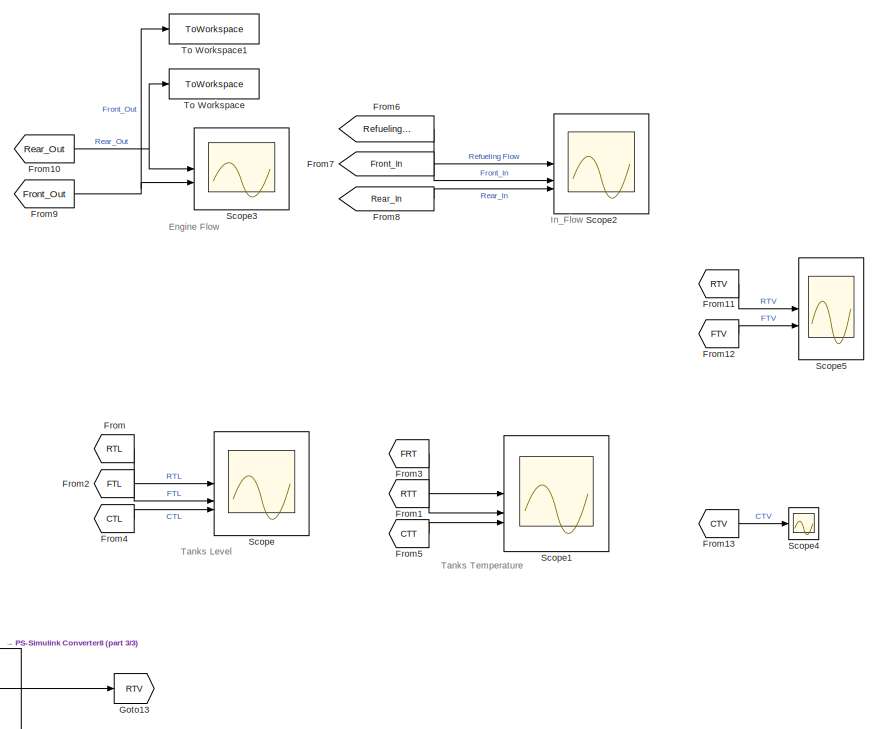
[diagram: root canvas - part 1/3, top right region]
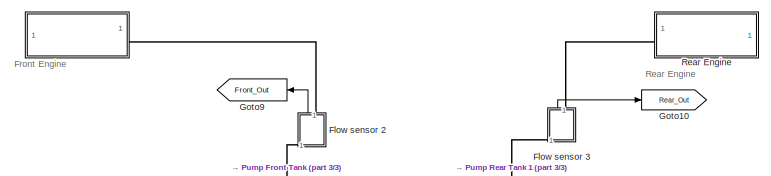
[diagram: root canvas - part 2/3, top center region]
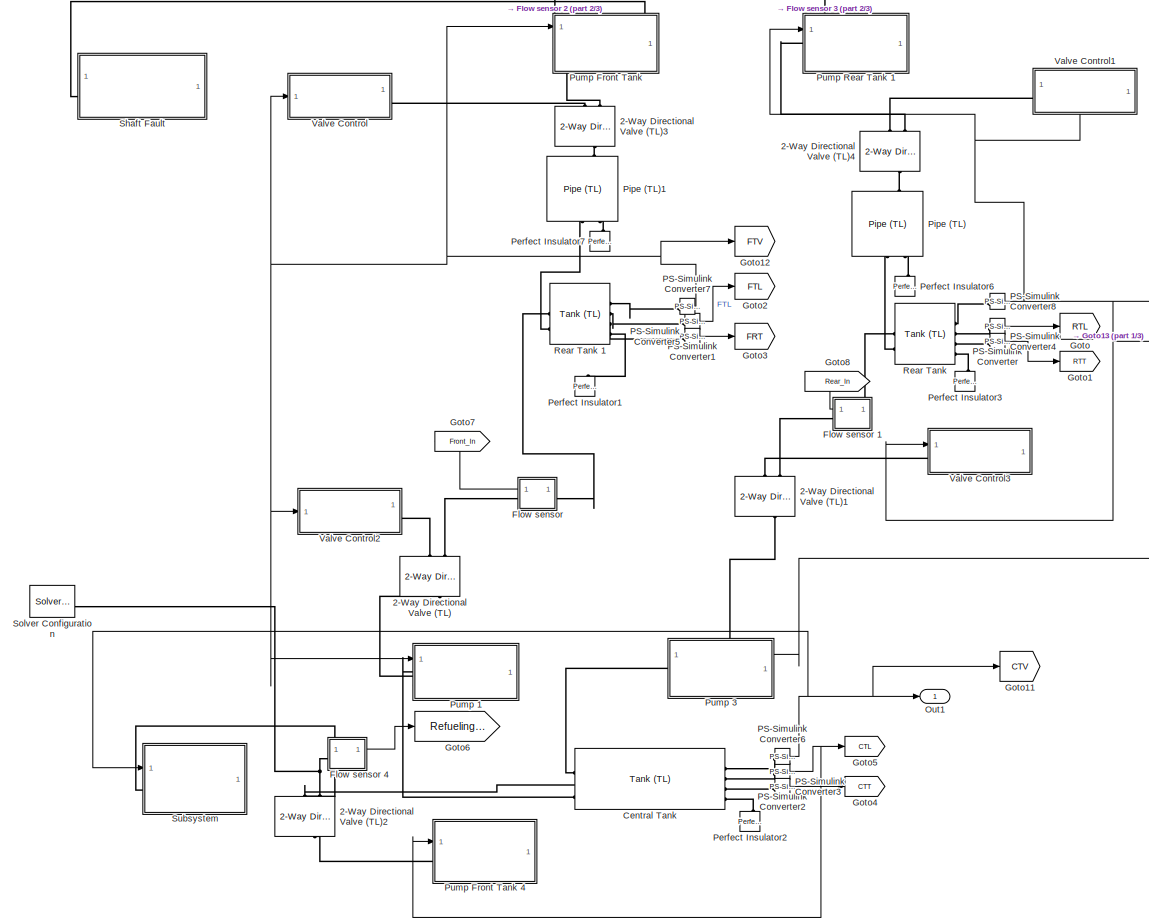
[diagram: root canvas - part 3/3, middle left region]
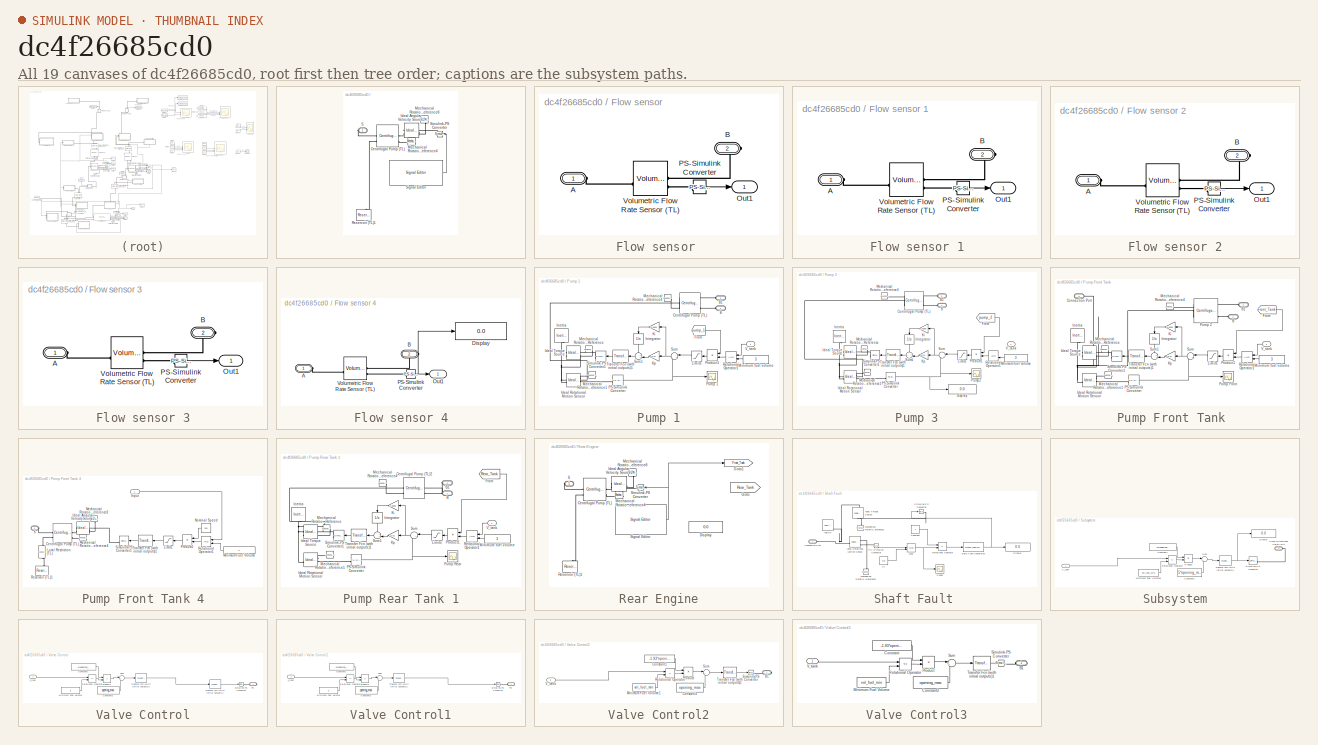
[diagram: thumbnail index - all 19 canvases of the model, root first then tree order]
MODEL slx_dc4f26685cd0
KIND model
CONFIG AbsTol = 1e-04
CONFIG EnableMultiTasking = off
CONFIG FixedStep = auto
CONFIG MaxStep = 10
CONFIG MinStep = auto
CONFIG RelTol = 1e-04
CONFIG SampleTimeConstraint = Unconstrained
CONFIG SolverName = VariableStepAuto
CONFIG StartTime = 0.0
CONFIG StopTime = 8000
BLOCK [SubSystem]  
BLOCK [Reference]  /Centrifugal Pump (TL)  REF=SimscapeFluids_lib/Thermal Liquid/Pumps & Motors/Centrifugal Pump
(TL)
  SourceBlock = SimscapeFluids_lib/Thermal Liquid/Pumps & Motors/Centrifugal Pump\n(TL)
  SourceType = Centrifugal Pump\n(TL)
BLOCK [Reference]  /Ideal Angular Velocity Source2  REF=fl_lib/Mechanical/Mechanical Sources/Ideal Angular
Velocity Source
  NameLocation = top
  SourceBlock = fl_lib/Mechanical/Mechanical Sources/Ideal Angular\nVelocity Source
  SourceType = Ideal Angular\nVelocity Source
BLOCK [Reference]  /Mechanical Rotational Reference4  REF=fl_lib/Mechanical/Rotational Elements/Mechanical
Rotational Reference
  NameLocation = top
  SourceBlock = fl_lib/Mechanical/Rotational Elements/Mechanical\nRotational Reference
  SourceType = Mechanical\nRotational Reference
BLOCK [Reference]  /Mechanical Rotational Reference8  REF=fl_lib/Mechanical/Rotational Elements/Mechanical
Rotational Reference
  NameLocation = left
  SourceBlock = fl_lib/Mechanical/Rotational Elements/Mechanical\nRotational Reference
  SourceType = Mechanical\nRotational Reference
BLOCK [Reference]  /Reservoir (TL)1  REF=fl_lib/Thermal Liquid/Elements/Reservoir (TL)
  NameLocation = right
  SourceBlock = fl_lib/Thermal Liquid/Elements/Reservoir (TL)
  SourceType = Reservoir (TL)
BLOCK [PMIOPort]  /S
  Side = Right
BLOCK [Reference]  /Signal Editor  REF=SignalEditorBlockLib/Signal Editor
  SourceBlock = SignalEditorBlockLib/Signal Editor
  SourceType = SignalEditor
  UserDataPersistent = on
BLOCK [Reference]  /Simulink-PS Converter  REF=nesl_utility/Simulink-PS
Converter
  NameLocation = top
  SourceBlock = nesl_utility/Simulink-PS\nConverter
  SourceType = Simulink-PS\nConverter
BLOCK [Reference] 2-Way Directional Valve (TL)  REF=SimscapeFluids_lib/Thermal Liquid/Valves & Orifices/Directional Control
Valves/2-Way Directional
Valve (TL)
  NameLocation = left
  SourceBlock = SimscapeFluids_lib/Thermal Liquid/Valves & Orifices/Directional Control\nValves/2-Way Directional\nValve (TL)
  SourceType = 2-Way Directional\nValve (TL)
BLOCK [Reference] 2-Way Directional Valve (TL)1  REF=SimscapeFluids_lib/Thermal Liquid/Valves & Orifices/Directional Control
Valves/2-Way Directional
Valve (TL)
  NameLocation = left
  SourceBlock = SimscapeFluids_lib/Thermal Liquid/Valves & Orifices/Directional Control\nValves/2-Way Directional\nValve (TL)
  SourceType = 2-Way Directional\nValve (TL)
BLOCK [Reference] 2-Way Directional Valve (TL)2  REF=SimscapeFluids_lib/Thermal Liquid/Valves & Orifices/Directional Control
Valves/2-Way Directional
Valve (TL)
  NameLocation = left
  SourceBlock = SimscapeFluids_lib/Thermal Liquid/Valves & Orifices/Directional Control\nValves/2-Way Directional\nValve (TL)
  SourceType = 2-Way Directional\nValve (TL)
BLOCK [Reference] 2-Way Directional Valve (TL)3  REF=SimscapeFluids_lib/Thermal Liquid/Valves & Orifices/Directional Control
Valves/2-Way Directional
Valve (TL)
  NameLocation = left
  SourceBlock = SimscapeFluids_lib/Thermal Liquid/Valves & Orifices/Directional Control\nValves/2-Way Directional\nValve (TL)
  SourceType = 2-Way Directional\nValve (TL)
BLOCK [Reference] 2-Way Directional Valve (TL)4  REF=SimscapeFluids_lib/Thermal Liquid/Valves & Orifices/Directional Control
Valves/2-Way Directional
Valve (TL)
  NameLocation = left
  SourceBlock = SimscapeFluids_lib/Thermal Liquid/Valves & Orifices/Directional Control\nValves/2-Way Directional\nValve (TL)
  SourceType = 2-Way Directional\nValve (TL)
BLOCK [Reference] Central  Tank   REF=SimscapeFluids_lib/Thermal Liquid/Tanks & Accumulators/Tank (TL)
  SourceBlock = SimscapeFluids_lib/Thermal Liquid/Tanks & Accumulators/Tank (TL)
  SourceType = Tank (TL)
BLOCK [SubSystem] Flow sensor 
  PortSchema = {"entries":[{"content":{"sides":[{"content":{"connectorIds":["Out1","LConn1"]},"type":"ConnectorPlacement.EquallySpacedRectSide","uuid":"5284a614-22fb-4539-b8c2-000aa98607e7"},{"content":{"connectorIds":["RConn1"],"side":"RIGHT"},"type":"ConnectorPlacement.EquallySpacedRectSide","uuid":"ab54947e-968b-43fc-9d3b-310523b757f2"},{"content":{"connectorIds":[],"side":"TOP"},"type":"ConnectorPlacement.Eq...<+254ch>
BLOCK [PMIOPort] Flow sensor /A
  Side = Left
BLOCK [PMIOPort] Flow sensor /B
  Port = 2
  Side = Right
BLOCK [Outport] Flow sensor /Out1
BLOCK [Reference] Flow sensor /PS-Simulink Converter  REF=nesl_utility/PS-Simulink
Converter
  SourceBlock = nesl_utility/PS-Simulink\nConverter
  SourceType = PS-Simulink\nConverter
BLOCK [Reference] Flow sensor /Volumetric Flow Rate Sensor (TL)  REF=fl_lib/Thermal Liquid/Sensors/Volumetric Flow Rate
Sensor (TL)
  SourceBlock = fl_lib/Thermal Liquid/Sensors/Volumetric Flow Rate\nSensor (TL)
  SourceType = Volumetric Flow Rate\nSensor (TL)
BLOCK [SubSystem] Flow sensor 1
  PortSchema = {"entries":[{"content":{"sides":[{"content":{"connectorIds":["Out1","LConn1"]},"type":"ConnectorPlacement.EquallySpacedRectSide","uuid":"5284a614-22fb-4539-b8c2-000aa98607e7"},{"content":{"connectorIds":["RConn1"],"side":"RIGHT"},"type":"ConnectorPlacement.EquallySpacedRectSide","uuid":"ab54947e-968b-43fc-9d3b-310523b757f2"},{"content":{"connectorIds":[],"side":"TOP"},"type":"ConnectorPlacement.Eq...<+254ch>
BLOCK [PMIOPort] Flow sensor 1/A
  Side = Left
BLOCK [PMIOPort] Flow sensor 1/B
  Port = 2
  Side = Right
BLOCK [Outport] Flow sensor 1/Out1
BLOCK [Reference] Flow sensor 1/PS-Simulink Converter  REF=nesl_utility/PS-Simulink
Converter
  SourceBlock = nesl_utility/PS-Simulink\nConverter
  SourceType = PS-Simulink\nConverter
BLOCK [Reference] Flow sensor 1/Volumetric Flow Rate Sensor (TL)  REF=fl_lib/Thermal Liquid/Sensors/Volumetric Flow Rate
Sensor (TL)
  SourceBlock = fl_lib/Thermal Liquid/Sensors/Volumetric Flow Rate\nSensor (TL)
  SourceType = Volumetric Flow Rate\nSensor (TL)
BLOCK [SubSystem] Flow sensor 2
  NameLocation = right
BLOCK [PMIOPort] Flow sensor 2/A
  Side = Left
BLOCK [PMIOPort] Flow sensor 2/B
  Port = 2
  Side = Right
BLOCK [Outport] Flow sensor 2/Out1
BLOCK [Reference] Flow sensor 2/PS-Simulink Converter  REF=nesl_utility/PS-Simulink
Converter
  SourceBlock = nesl_utility/PS-Simulink\nConverter
  SourceType = PS-Simulink\nConverter
BLOCK [Reference] Flow sensor 2/Volumetric Flow Rate Sensor (TL)  REF=fl_lib/Thermal Liquid/Sensors/Volumetric Flow Rate
Sensor (TL)
  SourceBlock = fl_lib/Thermal Liquid/Sensors/Volumetric Flow Rate\nSensor (TL)
  SourceType = Volumetric Flow Rate\nSensor (TL)
BLOCK [SubSystem] Flow sensor 3
  NameLocation = right
BLOCK [PMIOPort] Flow sensor 3/A
  Side = Left
BLOCK [PMIOPort] Flow sensor 3/B
  Port = 2
  Side = Right
BLOCK [Outport] Flow sensor 3/Out1
BLOCK [Reference] Flow sensor 3/PS-Simulink Converter  REF=nesl_utility/PS-Simulink
Converter
  SourceBlock = nesl_utility/PS-Simulink\nConverter
  SourceType = PS-Simulink\nConverter
BLOCK [Reference] Flow sensor 3/Volumetric Flow Rate Sensor (TL)  REF=fl_lib/Thermal Liquid/Sensors/Volumetric Flow Rate
Sensor (TL)
  SourceBlock = fl_lib/Thermal Liquid/Sensors/Volumetric Flow Rate\nSensor (TL)
  SourceType = Volumetric Flow Rate\nSensor (TL)
BLOCK [SubSystem] Flow sensor 4
BLOCK [PMIOPort] Flow sensor 4/A
  Side = Left
BLOCK [PMIOPort] Flow sensor 4/B
  Port = 2
  Side = Right
BLOCK [Display] Flow sensor 4/Display
  Decimation = 1
BLOCK [Outport] Flow sensor 4/Out1
BLOCK [Reference] Flow sensor 4/PS-Simulink Converter  REF=nesl_utility/PS-Simulink
Converter
  SourceBlock = nesl_utility/PS-Simulink\nConverter
  SourceType = PS-Simulink\nConverter
BLOCK [Reference] Flow sensor 4/Volumetric Flow Rate Sensor (TL)  REF=fl_lib/Thermal Liquid/Sensors/Volumetric Flow Rate
Sensor (TL)
  SourceBlock = fl_lib/Thermal Liquid/Sensors/Volumetric Flow Rate\nSensor (TL)
  SourceType = Volumetric Flow Rate\nSensor (TL)
BLOCK [From] From
  GotoTag = RTL
BLOCK [From] From1
  GotoTag = RTT
BLOCK [From] From10
  GotoTag = Rear_Out
BLOCK [From] From11
  GotoTag = RTV
  TagVisibility = global
BLOCK [From] From12
  GotoTag = FTV
  TagVisibility = global
BLOCK [From] From13
  GotoTag = CTV
  TagVisibility = global
BLOCK [From] From2
  GotoTag = FTL
BLOCK [From] From3
  GotoTag = FRT
BLOCK [From] From4
  GotoTag = CTL
BLOCK [From] From5
  GotoTag = CTT
BLOCK [From] From6
  GotoTag = Refueling_Flow
BLOCK [From] From7
  GotoTag = Front_In
BLOCK [From] From8
  GotoTag = Rear_In
BLOCK [From] From9
  GotoTag = Front_Out
BLOCK [Goto] Goto
  GotoTag = RTL
BLOCK [Goto] Goto1
  GotoTag = RTT
BLOCK [Goto] Goto10
  GotoTag = Rear_Out
BLOCK [Goto] Goto11
  GotoTag = CTV
  TagVisibility = global
BLOCK [Goto] Goto12
  GotoTag = FTV
  TagVisibility = global
BLOCK [Goto] Goto13
  GotoTag = RTV
  TagVisibility = global
BLOCK [Goto] Goto2
  GotoTag = FTL
BLOCK [Goto] Goto3
  GotoTag = FRT
BLOCK [Goto] Goto4
  GotoTag = CTT
BLOCK [Goto] Goto5
  GotoTag = CTL
BLOCK [Goto] Goto6
  GotoTag = Refueling_Flow
BLOCK [Goto] Goto7
  GotoTag = Front_In
BLOCK [Goto] Goto8
  GotoTag = Rear_In
BLOCK [Goto] Goto9
  GotoTag = Front_Out
  NameLocation = top
BLOCK [Outport] Out1
BLOCK [Reference] PS-Simulink Converter  REF=nesl_utility/PS-Simulink
Converter
  SourceBlock = nesl_utility/PS-Simulink\nConverter
  SourceType = PS-Simulink\nConverter
BLOCK [Reference] PS-Simulink Converter1  REF=nesl_utility/PS-Simulink
Converter
  SourceBlock = nesl_utility/PS-Simulink\nConverter
  SourceType = PS-Simulink\nConverter
BLOCK [Reference] PS-Simulink Converter2  REF=nesl_utility/PS-Simulink
Converter
  SourceBlock = nesl_utility/PS-Simulink\nConverter
  SourceType = PS-Simulink\nConverter
BLOCK [Reference] PS-Simulink Converter3  REF=nesl_utility/PS-Simulink
Converter
  SourceBlock = nesl_utility/PS-Simulink\nConverter
  SourceType = PS-Simulink\nConverter
BLOCK [Reference] PS-Simulink Converter4  REF=nesl_utility/PS-Simulink
Converter
  SourceBlock = nesl_utility/PS-Simulink\nConverter
  SourceType = PS-Simulink\nConverter
BLOCK [Reference] PS-Simulink Converter5  REF=nesl_utility/PS-Simulink
Converter
  SourceBlock = nesl_utility/PS-Simulink\nConverter
  SourceType = PS-Simulink\nConverter
BLOCK [Reference] PS-Simulink Converter6  REF=nesl_utility/PS-Simulink
Converter
  SourceBlock = nesl_utility/PS-Simulink\nConverter
  SourceType = PS-Simulink\nConverter
BLOCK [Reference] PS-Simulink Converter7  REF=nesl_utility/PS-Simulink
Converter
  SourceBlock = nesl_utility/PS-Simulink\nConverter
  SourceType = PS-Simulink\nConverter
BLOCK [Reference] PS-Simulink Converter8  REF=nesl_utility/PS-Simulink
Converter
  SourceBlock = nesl_utility/PS-Simulink\nConverter
  SourceType = PS-Simulink\nConverter
BLOCK [Reference] Perfect Insulator1  REF=fl_lib/Thermal/Thermal Elements/Perfect Insulator
  NameLocation = right
  SourceBlock = fl_lib/Thermal/Thermal Elements/Perfect Insulator
  SourceType = Perfect Insulator
BLOCK [Reference] Perfect Insulator2  REF=fl_lib/Thermal/Thermal Elements/Perfect Insulator
  NameLocation = right
  SourceBlock = fl_lib/Thermal/Thermal Elements/Perfect Insulator
  SourceType = Perfect Insulator
BLOCK [Reference] Perfect Insulator3  REF=fl_lib/Thermal/Thermal Elements/Perfect Insulator
  NameLocation = right
  SourceBlock = fl_lib/Thermal/Thermal Elements/Perfect Insulator
  SourceType = Perfect Insulator
BLOCK [Reference] Perfect Insulator6  REF=fl_lib/Thermal/Thermal Elements/Perfect Insulator
  NameLocation = right
  SourceBlock = fl_lib/Thermal/Thermal Elements/Perfect Insulator
  SourceType = Perfect Insulator
BLOCK [Reference] Perfect Insulator7  REF=fl_lib/Thermal/Thermal Elements/Perfect Insulator
  NameLocation = right
  SourceBlock = fl_lib/Thermal/Thermal Elements/Perfect Insulator
  SourceType = Perfect Insulator
BLOCK [Reference] Pipe (TL)  REF=SimscapeFluids_lib/Thermal Liquid/Pipes & Fittings/Pipe (TL)
  NameLocation = right
  SourceBlock = SimscapeFluids_lib/Thermal Liquid/Pipes & Fittings/Pipe (TL)
  SourceType = Pipe (TL)
BLOCK [Reference] Pipe (TL)1  REF=SimscapeFluids_lib/Thermal Liquid/Pipes & Fittings/Pipe (TL)
  NameLocation = right
  SourceBlock = SimscapeFluids_lib/Thermal Liquid/Pipes & Fittings/Pipe (TL)
  SourceType = Pipe (TL)
BLOCK [SubSystem] Pump 1
  PortSchema = {"entries":[{"content":{"sides":[{"content":{"connectorIds":["LConn1","In1"]},"type":"ConnectorPlacement.EquallySpacedRectSide","uuid":"f9fde711-b4bf-4785-9cc0-8903af8b3bdb"},{"content":{"connectorIds":[],"side":"RIGHT"},"type":"ConnectorPlacement.EquallySpacedRectSide","uuid":"7d5e19b5-7f0d-4770-805b-c0a3bf695392"},{"content":{"connectorIds":["LConn2"],"side":"TOP"},"type":"ConnectorPlacement.Equ...<+397ch>
BLOCK [PMIOPort] Pump 1/B
  Side = Left
BLOCK [PMIOPort] Pump 1/B1
  Port = 2
  Side = Left
BLOCK [Reference] Pump 1/Centrifugal Pump (TL)  REF=SimscapeFluids_lib/Thermal Liquid/Pumps & Motors/Centrifugal Pump
(TL)
  NameLocation = top
  SourceBlock = SimscapeFluids_lib/Thermal Liquid/Pumps & Motors/Centrifugal Pump\n(TL)
  SourceType = Centrifugal Pump\n(TL)
BLOCK [From] Pump 1/From
  GotoTag = pump_1
  TagVisibility = global
BLOCK [Reference] Pump 1/Ideal Rotational Motion Sensor  REF=fl_lib/Mechanical/Mechanical Sensors/Ideal Rotational
Motion Sensor
  SourceBlock = fl_lib/Mechanical/Mechanical Sensors/Ideal Rotational\nMotion Sensor
  SourceType = Ideal Rotational\nMotion Sensor
BLOCK [Reference] Pump 1/Ideal Torque Source  REF=fl_lib/Mechanical/Mechanical Sources/Ideal Torque Source
  SourceBlock = fl_lib/Mechanical/Mechanical Sources/Ideal Torque Source
  SourceType = Ideal Torque Source
BLOCK [Reference] Pump 1/Inertia  REF=fl_lib/Mechanical/Rotational Elements/Inertia
  NameLocation = right
  SourceBlock = fl_lib/Mechanical/Rotational Elements/Inertia
  SourceType = Inertia
BLOCK [Integrator] Pump 1/Integrator
  LimitOutput = on
  LowerSaturationLimit = -1
  NameLocation = left
  UpperSaturationLimit = 1
BLOCK [Gain] Pump 1/Ki
  Gain = 0.0008
BLOCK [Gain] Pump 1/Kp
  Gain = 0.01
BLOCK [Saturate] Pump 1/Limits
  LowerLimit = 20
  UpperLimit = 210
BLOCK [Reference] Pump 1/Mechanical Rotational Reference  REF=fl_lib/Mechanical/Rotational Elements/Mechanical
Rotational Reference
  NameLocation = top
  SourceBlock = fl_lib/Mechanical/Rotational Elements/Mechanical\nRotational Reference
  SourceType = Mechanical\nRotational Reference
BLOCK [Reference] Pump 1/Mechanical Rotational Reference1  REF=fl_lib/Mechanical/Rotational Elements/Mechanical
Rotational Reference
  NameLocation = top
  SourceBlock = fl_lib/Mechanical/Rotational Elements/Mechanical\nRotational Reference
  SourceType = Mechanical\nRotational Reference
BLOCK [Reference] Pump 1/Mechanical Rotational Reference4  REF=fl_lib/Mechanical/Rotational Elements/Mechanical
Rotational Reference
  SourceBlock = fl_lib/Mechanical/Rotational Elements/Mechanical\nRotational Reference
  SourceType = Mechanical\nRotational Reference
BLOCK [Constant] Pump 1/Minimum fuel volume
  Value = 3
BLOCK [Reference] Pump 1/PS-Simulink Converter  REF=nesl_utility/PS-Simulink
Converter
  SourceBlock = nesl_utility/PS-Simulink\nConverter
  SourceType = PS-Simulink\nConverter
BLOCK [Product] Pump 1/Product1
  RndMeth = Zero
BLOCK [Scope] Pump 1/Pump 1
  Floating = off
  NumInputPorts = 1
  ScopeSpecificationString = Simulink.scopes.TimeScopeBlockCfg('CurrentConfiguration', extmgr.ConfigurationSet(extmgr.Configuration('Core','General UI',true),extmgr.Configuration('Core','Source UI',true),extmgr.Configuration('Sources','WiredSimulink',true,'DataLoggingVariableName','ScopeData3'),extmgr.Configuration('Visuals','Time Domain',true,'SerializedDisplays',{struct('MinYLimReal','112.33719','MaxYLimReal','141.66472','Y...<+1442ch>
BLOCK [RelationalOperator] Pump 1/Relational Operator1
  InputSameDT = off
  OutDataTypeStr = boolean
BLOCK [Reference] Pump 1/Simulink-PS Converter1  REF=nesl_utility/Simulink-PS
Converter
  SourceBlock = nesl_utility/Simulink-PS\nConverter
  SourceType = Simulink-PS\nConverter
BLOCK [Sum] Pump 1/Sum
  Inputs = |+-
  NameLocation = top
BLOCK [Sum] Pump 1/Sum1
  Inputs = ++|
  NameLocation = top
BLOCK [Reference] Pump 1/Transfer Fcn (with initial outputs)1  REF=simulink_extras/Additional
Linear/Transfer Fcn
(with initial outputs)
  SourceBlock = simulink_extras/Additional\nLinear/Transfer Fcn\n(with initial outputs)
  SourceType = Transfer Function with Initial Outputs
BLOCK [Inport] Pump 1/V_tank
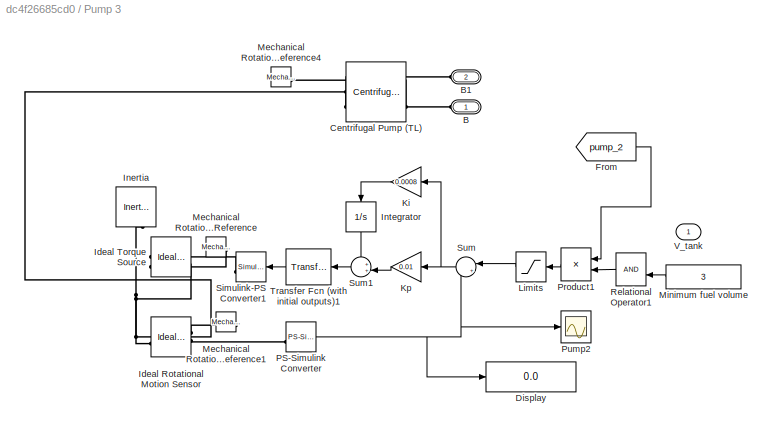
BLOCK [SubSystem] Pump 3
  PortSchema = {"entries":[{"content":{"sides":[{"content":{"connectorIds":["LConn1"]},"type":"ConnectorPlacement.EquallySpacedRectSide","uuid":"f9fde711-b4bf-4785-9cc0-8903af8b3bdb"},{"content":{"connectorIds":["In1"],"side":"RIGHT"},"type":"ConnectorPlacement.EquallySpacedRectSide","uuid":"7d5e19b5-7f0d-4770-805b-c0a3bf695392"},{"content":{"connectorIds":["LConn2"],"side":"TOP"},"type":"ConnectorPlacement.Equa...<+396ch>
BLOCK [PMIOPort] Pump 3/B
  Side = Left
BLOCK [PMIOPort] Pump 3/B1
  Port = 2
  Side = Left
BLOCK [Reference] Pump 3/Centrifugal Pump (TL)  REF=SimscapeFluids_lib/Thermal Liquid/Pumps & Motors/Centrifugal Pump
(TL)
  NameLocation = top
  SourceBlock = SimscapeFluids_lib/Thermal Liquid/Pumps & Motors/Centrifugal Pump\n(TL)
  SourceType = Centrifugal Pump\n(TL)
BLOCK [Display] Pump 3/Display
  Decimation = 1
BLOCK [From] Pump 3/From
  GotoTag = pump_2
  TagVisibility = global
BLOCK [Reference] Pump 3/Ideal Rotational Motion Sensor  REF=fl_lib/Mechanical/Mechanical Sensors/Ideal Rotational
Motion Sensor
  SourceBlock = fl_lib/Mechanical/Mechanical Sensors/Ideal Rotational\nMotion Sensor
  SourceType = Ideal Rotational\nMotion Sensor
BLOCK [Reference] Pump 3/Ideal Torque Source  REF=fl_lib/Mechanical/Mechanical Sources/Ideal Torque Source
  SourceBlock = fl_lib/Mechanical/Mechanical Sources/Ideal Torque Source
  SourceType = Ideal Torque Source
BLOCK [Reference] Pump 3/Inertia  REF=fl_lib/Mechanical/Rotational Elements/Inertia
  NameLocation = right
  SourceBlock = fl_lib/Mechanical/Rotational Elements/Inertia
  SourceType = Inertia
BLOCK [Integrator] Pump 3/Integrator
  LimitOutput = on
  LowerSaturationLimit = -1
  NameLocation = left
  UpperSaturationLimit = 1
BLOCK [Gain] Pump 3/Ki
  Gain = 0.0008
BLOCK [Gain] Pump 3/Kp
  Gain = 0.01
BLOCK [Saturate] Pump 3/Limits
  LowerLimit = 20
  UpperLimit = 220
BLOCK [Reference] Pump 3/Mechanical Rotational Reference  REF=fl_lib/Mechanical/Rotational Elements/Mechanical
Rotational Reference
  NameLocation = top
  SourceBlock = fl_lib/Mechanical/Rotational Elements/Mechanical\nRotational Reference
  SourceType = Mechanical\nRotational Reference
BLOCK [Reference] Pump 3/Mechanical Rotational Reference1  REF=fl_lib/Mechanical/Rotational Elements/Mechanical
Rotational Reference
  NameLocation = top
  SourceBlock = fl_lib/Mechanical/Rotational Elements/Mechanical\nRotational Reference
  SourceType = Mechanical\nRotational Reference
BLOCK [Reference] Pump 3/Mechanical Rotational Reference4  REF=fl_lib/Mechanical/Rotational Elements/Mechanical
Rotational Reference
  SourceBlock = fl_lib/Mechanical/Rotational Elements/Mechanical\nRotational Reference
  SourceType = Mechanical\nRotational Reference
BLOCK [Constant] Pump 3/Minimum fuel volume
  Value = 3
BLOCK [Reference] Pump 3/PS-Simulink Converter  REF=nesl_utility/PS-Simulink
Converter
  SourceBlock = nesl_utility/PS-Simulink\nConverter
  SourceType = PS-Simulink\nConverter
BLOCK [Product] Pump 3/Product1
  RndMeth = Zero
BLOCK [Scope] Pump 3/Pump2
  Floating = off
  NumInputPorts = 1
  ScopeSpecificationString = Simulink.scopes.TimeScopeBlockCfg('CurrentConfiguration', extmgr.ConfigurationSet(extmgr.Configuration('Core','General UI',true),extmgr.Configuration('Core','Source UI',true),extmgr.Configuration('Sources','WiredSimulink',true,'DataLoggingVariableName','ScopeData4'),extmgr.Configuration('Visuals','Time Domain',true,'SerializedDisplays',{struct('MinYLimReal','112.33719','MaxYLimReal','141.66472','Y...<+1442ch>
BLOCK [RelationalOperator] Pump 3/Relational Operator1
  InputSameDT = off
  OutDataTypeStr = boolean
BLOCK [Reference] Pump 3/Simulink-PS Converter1  REF=nesl_utility/Simulink-PS
Converter
  SourceBlock = nesl_utility/Simulink-PS\nConverter
  SourceType = Simulink-PS\nConverter
BLOCK [Sum] Pump 3/Sum
  Inputs = |+-
  NameLocation = top
BLOCK [Sum] Pump 3/Sum1
  Inputs = ++|
  NameLocation = top
BLOCK [Reference] Pump 3/Transfer Fcn (with initial outputs)1  REF=simulink_extras/Additional
Linear/Transfer Fcn
(with initial outputs)
  SourceBlock = simulink_extras/Additional\nLinear/Transfer Fcn\n(with initial outputs)
  SourceType = Transfer Function with Initial Outputs
BLOCK [Inport] Pump 3/V_tank
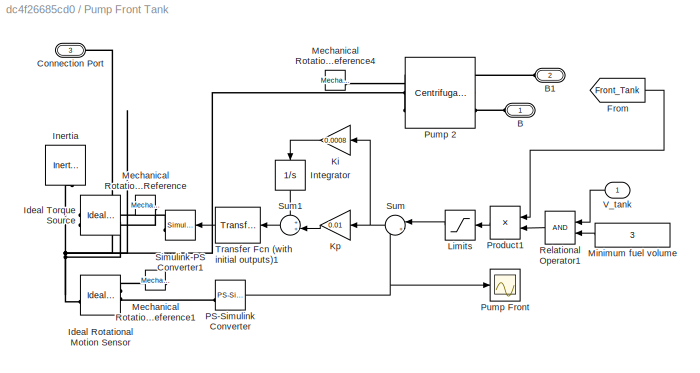
BLOCK [SubSystem] Pump Front Tank 
  PortSchema = {"entries":[{"content":{"sides":[{"content":{"connectorIds":["LConn1","In1"]},"type":"ConnectorPlacement.EquallySpacedRectSide","uuid":"f9fde711-b4bf-4785-9cc0-8903af8b3bdb"},{"content":{"connectorIds":[],"side":"RIGHT"},"type":"ConnectorPlacement.EquallySpacedRectSide","uuid":"7d5e19b5-7f0d-4770-805b-c0a3bf695392"},{"content":{"connectorIds":["LConn2","LConn3"],"side":"TOP"},"type":"ConnectorPlac...<+406ch>
BLOCK [PMIOPort] Pump Front Tank /B
  Side = Left
BLOCK [PMIOPort] Pump Front Tank /B1
  Port = 2
  Side = Left
BLOCK [PMIOPort] Pump Front Tank /Connection Port
  Port = 3
  Side = Left
BLOCK [From] Pump Front Tank /From
  GotoTag = Front_Tank
  TagVisibility = global
BLOCK [Reference] Pump Front Tank /Ideal Rotational Motion Sensor  REF=fl_lib/Mechanical/Mechanical Sensors/Ideal Rotational
Motion Sensor
  SourceBlock = fl_lib/Mechanical/Mechanical Sensors/Ideal Rotational\nMotion Sensor
  SourceType = Ideal Rotational\nMotion Sensor
BLOCK [Reference] Pump Front Tank /Ideal Torque Source  REF=fl_lib/Mechanical/Mechanical Sources/Ideal Torque Source
  SourceBlock = fl_lib/Mechanical/Mechanical Sources/Ideal Torque Source
  SourceType = Ideal Torque Source
BLOCK [Reference] Pump Front Tank /Inertia  REF=fl_lib/Mechanical/Rotational Elements/Inertia
  NameLocation = right
  SourceBlock = fl_lib/Mechanical/Rotational Elements/Inertia
  SourceType = Inertia
BLOCK [Integrator] Pump Front Tank /Integrator
  LimitOutput = on
  LowerSaturationLimit = -1
  NameLocation = left
  UpperSaturationLimit = 1
BLOCK [Gain] Pump Front Tank /Ki
  Gain = 0.0008
BLOCK [Gain] Pump Front Tank /Kp
  Gain = 0.01
BLOCK [Saturate] Pump Front Tank /Limits
  LowerLimit = 20
  UpperLimit = 250
BLOCK [Reference] Pump Front Tank /Mechanical Rotational Reference  REF=fl_lib/Mechanical/Rotational Elements/Mechanical
Rotational Reference
  NameLocation = top
  SourceBlock = fl_lib/Mechanical/Rotational Elements/Mechanical\nRotational Reference
  SourceType = Mechanical\nRotational Reference
BLOCK [Reference] Pump Front Tank /Mechanical Rotational Reference1  REF=fl_lib/Mechanical/Rotational Elements/Mechanical
Rotational Reference
  NameLocation = top
  SourceBlock = fl_lib/Mechanical/Rotational Elements/Mechanical\nRotational Reference
  SourceType = Mechanical\nRotational Reference
BLOCK [Reference] Pump Front Tank /Mechanical Rotational Reference4  REF=fl_lib/Mechanical/Rotational Elements/Mechanical
Rotational Reference
  SourceBlock = fl_lib/Mechanical/Rotational Elements/Mechanical\nRotational Reference
  SourceType = Mechanical\nRotational Reference
BLOCK [Constant] Pump Front Tank /Minimum fuel volume
  Value = 3
BLOCK [Reference] Pump Front Tank /PS-Simulink Converter  REF=nesl_utility/PS-Simulink
Converter
  SourceBlock = nesl_utility/PS-Simulink\nConverter
  SourceType = PS-Simulink\nConverter
BLOCK [Product] Pump Front Tank /Product1
  RndMeth = Zero
BLOCK [Reference] Pump Front Tank /Pump 2  REF=SimscapeFluids_lib/Thermal Liquid/Pumps & Motors/Centrifugal Pump
(TL)
  NameLocation = top
  SourceBlock = SimscapeFluids_lib/Thermal Liquid/Pumps & Motors/Centrifugal Pump\n(TL)
  SourceType = Centrifugal Pump\n(TL)
BLOCK [Scope] Pump Front Tank /Pump Front 
  Floating = off
  NumInputPorts = 1
  ScopeSpecificationString = Simulink.scopes.TimeScopeBlockCfg('CurrentConfiguration', extmgr.ConfigurationSet(extmgr.Configuration('Core','General UI',true),extmgr.Configuration('Core','Source UI',true),extmgr.Configuration('Sources','WiredSimulink',true,'DataLoggingVariableName','ScopeData2'),extmgr.Configuration('Visuals','Time Domain',true),extmgr.Configuration('Tools','Plot Navigation',true),extmgr.Configuration('Tools',...<+40ch>
BLOCK [RelationalOperator] Pump Front Tank /Relational Operator1
  InputSameDT = off
  OutDataTypeStr = boolean
BLOCK [Reference] Pump Front Tank /Simulink-PS Converter1  REF=nesl_utility/Simulink-PS
Converter
  SourceBlock = nesl_utility/Simulink-PS\nConverter
  SourceType = Simulink-PS\nConverter
BLOCK [Sum] Pump Front Tank /Sum
  Inputs = |+-
  NameLocation = top
BLOCK [Sum] Pump Front Tank /Sum1
  Inputs = ++|
  NameLocation = top
BLOCK [Reference] Pump Front Tank /Transfer Fcn (with initial outputs)1  REF=simulink_extras/Additional
Linear/Transfer Fcn
(with initial outputs)
  SourceBlock = simulink_extras/Additional\nLinear/Transfer Fcn\n(with initial outputs)
  SourceType = Transfer Function with Initial Outputs
BLOCK [Inport] Pump Front Tank /V_tank
BLOCK [SubSystem] Pump Front Tank 4
BLOCK [Reference] Pump Front Tank 4/Centrifugal Pump (TL)  REF=SimscapeFluids_lib/Thermal Liquid/Pumps & Motors/Centrifugal Pump
(TL)
  SourceBlock = SimscapeFluids_lib/Thermal Liquid/Pumps & Motors/Centrifugal Pump\n(TL)
  SourceType = Centrifugal Pump\n(TL)
BLOCK [Reference] Pump Front Tank 4/Ideal Angular Velocity Source2  REF=fl_lib/Mechanical/Mechanical Sources/Ideal Angular
Velocity Source
  NameLocation = top
  SourceBlock = fl_lib/Mechanical/Mechanical Sources/Ideal Angular\nVelocity Source
  SourceType = Ideal Angular\nVelocity Source
BLOCK [Inport] Pump Front Tank 4/Input
BLOCK [Saturate] Pump Front Tank 4/Limits
  LowerLimit = 20
  UpperLimit = 200
BLOCK [Reference] Pump Front Tank 4/Local Restriction (TL)  REF=fl_lib/Thermal Liquid/Elements/Local Restriction
(TL)
  NameLocation = left
  SourceBlock = fl_lib/Thermal Liquid/Elements/Local Restriction\n(TL)
  SourceType = Local Restriction\n(TL)
BLOCK [Reference] Pump Front Tank 4/Mechanical Rotational Reference4  REF=fl_lib/Mechanical/Rotational Elements/Mechanical
Rotational Reference
  NameLocation = top
  SourceBlock = fl_lib/Mechanical/Rotational Elements/Mechanical\nRotational Reference
  SourceType = Mechanical\nRotational Reference
BLOCK [Reference] Pump Front Tank 4/Mechanical Rotational Reference8  REF=fl_lib/Mechanical/Rotational Elements/Mechanical
Rotational Reference
  NameLocation = left
  SourceBlock = fl_lib/Mechanical/Rotational Elements/Mechanical\nRotational Reference
  SourceType = Mechanical\nRotational Reference
BLOCK [Constant] Pump Front Tank 4/Minimum Fuel Volume
  Value = 3
BLOCK [Constant] Pump Front Tank 4/Nominal Speed
  NameLocation = top
  Value = 200
BLOCK [Product] Pump Front Tank 4/Product1
  RndMeth = Zero
BLOCK [RelationalOperator] Pump Front Tank 4/Relational Operator1
  InputSameDT = off
  OutDataTypeStr = boolean
BLOCK [Reference] Pump Front Tank 4/Reservoir (TL)1  REF=fl_lib/Thermal Liquid/Elements/Reservoir (TL)
  NameLocation = right
  SourceBlock = fl_lib/Thermal Liquid/Elements/Reservoir (TL)
  SourceType = Reservoir (TL)
BLOCK [PMIOPort] Pump Front Tank 4/S
  Side = Left
BLOCK [Reference] Pump Front Tank 4/Simulink-PS Converter1  REF=nesl_utility/Simulink-PS
Converter
  SourceBlock = nesl_utility/Simulink-PS\nConverter
  SourceType = Simulink-PS\nConverter
BLOCK [Reference] Pump Front Tank 4/Transfer Fcn (with initial outputs)1  REF=simulink_extras/Additional
Linear/Transfer Fcn
(with initial outputs)
  SourceBlock = simulink_extras/Additional\nLinear/Transfer Fcn\n(with initial outputs)
  SourceType = Transfer Function with Initial Outputs
BLOCK [SubSystem] Pump Rear Tank 1
  PortSchema = {"entries":[{"content":{"sides":[{"content":{"connectorIds":["LConn1","In1"]},"type":"ConnectorPlacement.EquallySpacedRectSide","uuid":"f9fde711-b4bf-4785-9cc0-8903af8b3bdb"},{"content":{"connectorIds":[],"side":"RIGHT"},"type":"ConnectorPlacement.EquallySpacedRectSide","uuid":"7d5e19b5-7f0d-4770-805b-c0a3bf695392"},{"content":{"connectorIds":["LConn2"],"side":"TOP"},"type":"ConnectorPlacement.Equ...<+397ch>
BLOCK [PMIOPort] Pump Rear Tank 1/B
  Side = Left
BLOCK [PMIOPort] Pump Rear Tank 1/B1
  Port = 2
  Side = Left
BLOCK [Reference] Pump Rear Tank 1/Centrifugal Pump (TL)2  REF=SimscapeFluids_lib/Thermal Liquid/Pumps & Motors/Centrifugal Pump
(TL)
  NameLocation = top
  SourceBlock = SimscapeFluids_lib/Thermal Liquid/Pumps & Motors/Centrifugal Pump\n(TL)
  SourceType = Centrifugal Pump\n(TL)
BLOCK [From] Pump Rear Tank 1/From
  GotoTag = Rear_Tank
  TagVisibility = global
BLOCK [Reference] Pump Rear Tank 1/Ideal Rotational Motion Sensor  REF=fl_lib/Mechanical/Mechanical Sensors/Ideal Rotational
Motion Sensor
  SourceBlock = fl_lib/Mechanical/Mechanical Sensors/Ideal Rotational\nMotion Sensor
  SourceType = Ideal Rotational\nMotion Sensor
BLOCK [Reference] Pump Rear Tank 1/Ideal Torque Source  REF=fl_lib/Mechanical/Mechanical Sources/Ideal Torque Source
  SourceBlock = fl_lib/Mechanical/Mechanical Sources/Ideal Torque Source
  SourceType = Ideal Torque Source
BLOCK [Reference] Pump Rear Tank 1/Inertia  REF=fl_lib/Mechanical/Rotational Elements/Inertia
  NameLocation = right
  SourceBlock = fl_lib/Mechanical/Rotational Elements/Inertia
  SourceType = Inertia
BLOCK [Integrator] Pump Rear Tank 1/Integrator
  LimitOutput = on
  LowerSaturationLimit = -1
  NameLocation = left
  UpperSaturationLimit = 1
BLOCK [Gain] Pump Rear Tank 1/Ki
  Gain = 0.0008
BLOCK [Gain] Pump Rear Tank 1/Kp
  Gain = 0.01
BLOCK [Saturate] Pump Rear Tank 1/Limits
  LowerLimit = 20
  UpperLimit = 250
BLOCK [Reference] Pump Rear Tank 1/Mechanical Rotational Reference  REF=fl_lib/Mechanical/Rotational Elements/Mechanical
Rotational Reference
  NameLocation = top
  SourceBlock = fl_lib/Mechanical/Rotational Elements/Mechanical\nRotational Reference
  SourceType = Mechanical\nRotational Reference
BLOCK [Reference] Pump Rear Tank 1/Mechanical Rotational Reference1  REF=fl_lib/Mechanical/Rotational Elements/Mechanical
Rotational Reference
  NameLocation = top
  SourceBlock = fl_lib/Mechanical/Rotational Elements/Mechanical\nRotational Reference
  SourceType = Mechanical\nRotational Reference
BLOCK [Reference] Pump Rear Tank 1/Mechanical Rotational Reference4  REF=fl_lib/Mechanical/Rotational Elements/Mechanical
Rotational Reference
  SourceBlock = fl_lib/Mechanical/Rotational Elements/Mechanical\nRotational Reference
  SourceType = Mechanical\nRotational Reference
BLOCK [Constant] Pump Rear Tank 1/Minimum fuel volume
  Value = 3
BLOCK [Reference] Pump Rear Tank 1/PS-Simulink Converter  REF=nesl_utility/PS-Simulink
Converter
  SourceBlock = nesl_utility/PS-Simulink\nConverter
  SourceType = PS-Simulink\nConverter
BLOCK [Product] Pump Rear Tank 1/Product1
  RndMeth = Zero
BLOCK [Scope] Pump Rear Tank 1/Pump Rear
  Floating = off
  NumInputPorts = 1
  ScopeSpecificationString = Simulink.scopes.TimeScopeBlockCfg('CurrentConfiguration', extmgr.ConfigurationSet(extmgr.Configuration('Core','General UI',true),extmgr.Configuration('Core','Source UI',true),extmgr.Configuration('Sources','WiredSimulink',true,'DataLoggingVariableName','ScopeData2'),extmgr.Configuration('Visuals','Time Domain',true,'SerializedDisplays',{struct('MinYLimReal','112.33719','MaxYLimReal','141.66472','Y...<+1442ch>
BLOCK [RelationalOperator] Pump Rear Tank 1/Relational Operator1
  InputSameDT = off
  OutDataTypeStr = boolean
BLOCK [Reference] Pump Rear Tank 1/Simulink-PS Converter1  REF=nesl_utility/Simulink-PS
Converter
  SourceBlock = nesl_utility/Simulink-PS\nConverter
  SourceType = Simulink-PS\nConverter
BLOCK [Sum] Pump Rear Tank 1/Sum
  Inputs = |+-
  NameLocation = top
BLOCK [Sum] Pump Rear Tank 1/Sum1
  Inputs = ++|
  NameLocation = top
BLOCK [Reference] Pump Rear Tank 1/Transfer Fcn (with initial outputs)1  REF=simulink_extras/Additional
Linear/Transfer Fcn
(with initial outputs)
  SourceBlock = simulink_extras/Additional\nLinear/Transfer Fcn\n(with initial outputs)
  SourceType = Transfer Function with Initial Outputs
BLOCK [Inport] Pump Rear Tank 1/V_tank
BLOCK [SubSystem] Rear Engine
  NameLocation = top
BLOCK [Reference] Rear Engine/Centrifugal Pump (TL)  REF=SimscapeFluids_lib/Thermal Liquid/Pumps & Motors/Centrifugal Pump
(TL)
  SourceBlock = SimscapeFluids_lib/Thermal Liquid/Pumps & Motors/Centrifugal Pump\n(TL)
  SourceType = Centrifugal Pump\n(TL)
BLOCK [Display] Rear Engine/Display
  Decimation = 1
BLOCK [Goto] Rear Engine/Goto
  GotoTag = Rear_Tank
  TagVisibility = global
BLOCK [Goto] Rear Engine/Goto1
  GotoTag = Front_Tank
  TagVisibility = global
BLOCK [Reference] Rear Engine/Ideal Angular Velocity Source2  REF=fl_lib/Mechanical/Mechanical Sources/Ideal Angular
Velocity Source
  NameLocation = top
  SourceBlock = fl_lib/Mechanical/Mechanical Sources/Ideal Angular\nVelocity Source
  SourceType = Ideal Angular\nVelocity Source
BLOCK [Reference] Rear Engine/Mechanical Rotational Reference4  REF=fl_lib/Mechanical/Rotational Elements/Mechanical
Rotational Reference
  NameLocation = top
  SourceBlock = fl_lib/Mechanical/Rotational Elements/Mechanical\nRotational Reference
  SourceType = Mechanical\nRotational Reference
BLOCK [Reference] Rear Engine/Mechanical Rotational Reference8  REF=fl_lib/Mechanical/Rotational Elements/Mechanical
Rotational Reference
  NameLocation = left
  SourceBlock = fl_lib/Mechanical/Rotational Elements/Mechanical\nRotational Reference
  SourceType = Mechanical\nRotational Reference
BLOCK [Reference] Rear Engine/Reservoir (TL)1  REF=fl_lib/Thermal Liquid/Elements/Reservoir (TL)
  NameLocation = right
  SourceBlock = fl_lib/Thermal Liquid/Elements/Reservoir (TL)
  SourceType = Reservoir (TL)
BLOCK [PMIOPort] Rear Engine/S
  Side = Right
BLOCK [Reference] Rear Engine/Signal Editor  REF=SignalEditorBlockLib/Signal Editor
  SourceBlock = SignalEditorBlockLib/Signal Editor
  SourceType = SignalEditor
  UserDataPersistent = on
BLOCK [Reference] Rear Engine/Simulink-PS Converter  REF=nesl_utility/Simulink-PS
Converter
  NameLocation = top
  SourceBlock = nesl_utility/Simulink-PS\nConverter
  SourceType = Simulink-PS\nConverter
BLOCK [Reference] Rear Tank   REF=SimscapeFluids_lib/Thermal Liquid/Tanks & Accumulators/Tank (TL)
  SourceBlock = SimscapeFluids_lib/Thermal Liquid/Tanks & Accumulators/Tank (TL)
  SourceType = Tank (TL)
BLOCK [Reference] Rear Tank 1  REF=SimscapeFluids_lib/Thermal Liquid/Tanks & Accumulators/Tank (TL)
  SourceBlock = SimscapeFluids_lib/Thermal Liquid/Tanks & Accumulators/Tank (TL)
  SourceType = Tank (TL)
BLOCK [Scope] Scope
  Floating = off
  NumInputPorts = 3
  ScopeSpecificationString = Simulink.scopes.TimeScopeBlockCfg('CurrentConfiguration', extmgr.ConfigurationSet(extmgr.Configuration('Core','General UI',true),extmgr.Configuration('Core','Source UI',true),extmgr.Configuration('Sources','WiredSimulink',true),extmgr.Configuration('Visuals','Time Domain',true,'SerializedDisplays',{struct('MinYLimReal','-0.23607','MaxYLimReal','6.18163','YLabelReal','','MinYLimMag','0.00000','MaxY...<+1429ch>
BLOCK [Scope] Scope1
  Floating = off
  NumInputPorts = 3
  ScopeSpecificationString = Simulink.scopes.TimeScopeBlockCfg('CurrentConfiguration', extmgr.ConfigurationSet(extmgr.Configuration('Core','General UI',true),extmgr.Configuration('Core','Source UI',true),extmgr.Configuration('Sources','WiredSimulink',true,'DataLoggingVariableName','ScopeData1'),extmgr.Configuration('Visuals','Time Domain',true,'SerializedDisplays',{struct('MinYLimReal','333.14998','MaxYLimReal','333.15014','Y...<+1445ch>
BLOCK [Scope] Scope2
  Floating = off
  NumInputPorts = 3
  ScopeSpecificationString = Simulink.scopes.TimeScopeBlockCfg('CurrentConfiguration', extmgr.ConfigurationSet(extmgr.Configuration('Core','General UI',true),extmgr.Configuration('Core','Source UI',true),extmgr.Configuration('Sources','WiredSimulink',true,'DataLoggingVariableName','ScopeData2'),extmgr.Configuration('Visuals','Time Domain',true,'SerializedDisplays',{struct('MinYLimReal','-0.0085','MaxYLimReal','0.00596','YLabe...<+1456ch>
BLOCK [Scope] Scope3
  Floating = off
  NumInputPorts = 2
  ScopeSpecificationString = Simulink.scopes.TimeScopeBlockCfg('CurrentConfiguration', extmgr.ConfigurationSet(extmgr.Configuration('Core','General UI',true,'FigureColor',[1 1 1]),extmgr.Configuration('Core','Source UI',true),extmgr.Configuration('Sources','WiredSimulink',true,'DataLoggingVariableName','ScopeData3'),extmgr.Configuration('Visuals','Time Domain',true,'SerializedDisplays',{struct('MinYLimReal','-0.00349','MaxYLi...<+1719ch>
BLOCK [Scope] Scope4
  Floating = off
  NumInputPorts = 1
  ScopeSpecificationString = Simulink.scopes.TimeScopeBlockCfg('CurrentConfiguration', extmgr.ConfigurationSet(extmgr.Configuration('Core','General UI',true),extmgr.Configuration('Core','Source UI',true),extmgr.Configuration('Sources','WiredSimulink',true,'DataLoggingVariableName','ScopeData2'),extmgr.Configuration('Visuals','Time Domain',true,'SerializedDisplays',{struct('MinYLimReal','491.25984','MaxYLimReal','546.76439','Y...<+1376ch>
BLOCK [Scope] Scope5
  Floating = off
  NumInputPorts = 2
  ScopeSpecificationString = Simulink.scopes.TimeScopeBlockCfg('CurrentConfiguration', extmgr.ConfigurationSet(extmgr.Configuration('Core','General UI',true),extmgr.Configuration('Core','Source UI',true),extmgr.Configuration('Sources','WiredSimulink',true,'DataLoggingVariableName','ScopeData1'),extmgr.Configuration('Visuals','Time Domain',true,'SerializedDisplays',{struct('MinYLimReal','408.69383','MaxYLimReal','435.44861','Y...<+1382ch>
BLOCK [SubSystem] Shaft Fault 
BLOCK [PMIOPort] Shaft Fault /Connection Port
  Side = Left
BLOCK [Constant] Shaft Fault /Constant
BLOCK [DataTypeConversion] Shaft Fault /Data Type Conversion
  OutDataTypeStr = double
  RndMeth = Floor
  SaturateOnIntegerOverflow = off
BLOCK [Display] Shaft Fault /Display
  Decimation = 1
BLOCK [Reference] Shaft Fault /Ideal Rotational Motion Sensor  REF=fl_lib/Mechanical/Mechanical Sensors/Ideal Rotational
Motion Sensor
  SourceBlock = fl_lib/Mechanical/Mechanical Sensors/Ideal Rotational\nMotion Sensor
  SourceType = Ideal Rotational\nMotion Sensor
BLOCK [Reference] Shaft Fault /Ideal Torque Source  REF=fl_lib/Mechanical/Mechanical Sources/Ideal Torque Source
  NameLocation = right
  SourceBlock = fl_lib/Mechanical/Mechanical Sources/Ideal Torque Source
  SourceType = Ideal Torque Source
BLOCK [Reference] Shaft Fault /Inertia  REF=fl_lib/Mechanical/Rotational Elements/Inertia
  NameLocation = right
  SourceBlock = fl_lib/Mechanical/Rotational Elements/Inertia
  SourceType = Inertia
BLOCK [Reference] Shaft Fault /Mechanical Rotational Reference  REF=fl_lib/Mechanical/Rotational Elements/Mechanical
Rotational Reference
  NameLocation = right
  SourceBlock = fl_lib/Mechanical/Rotational Elements/Mechanical\nRotational Reference
  SourceType = Mechanical\nRotational Reference
BLOCK [Reference] Shaft Fault /Mechanical Rotational Reference1  REF=fl_lib/Mechanical/Rotational Elements/Mechanical
Rotational Reference
  NameLocation = right
  SourceBlock = fl_lib/Mechanical/Rotational Elements/Mechanical\nRotational Reference
  SourceType = Mechanical\nRotational Reference
BLOCK [Math] Shaft Fault /Mod
  Operator = mod
BLOCK [Reference] Shaft Fault /PS-Simulink Converter  REF=nesl_utility/PS-Simulink
Converter
  SourceBlock = nesl_utility/PS-Simulink\nConverter
  SourceType = PS-Simulink\nConverter
BLOCK [Constant] Shaft Fault /Pi
  OutDataTypeStr = Inherit: Inherit via back propagation
  Value = 2*pi
BLOCK [RelationalOperator] Shaft Fault /Relational Operator
  InputSameDT = off
  Operator = <=
  OutDataTypeStr = boolean
  RndMeth = Simplest
BLOCK [Scope] Shaft Fault /Scope
  Floating = off
  NumInputPorts = 1
  ScopeSpecificationString = Simulink.scopes.TimeScopeBlockCfg('CurrentConfiguration', extmgr.ConfigurationSet(extmgr.Configuration('Core','General UI',true),extmgr.Configuration('Core','Source UI',true),extmgr.Configuration('Sources','WiredSimulink',true,'DataLoggingVariableName','ScopeData1'),extmgr.Configuration('Visuals','Time Domain',true,'SerializedDisplays',{struct('MinYLimReal','-0.7854','MaxYLimReal','7.06858','YLabe...<+1386ch>
BLOCK [Reference] Shaft Fault /Simulink-PS Converter  REF=nesl_utility/Simulink-PS
Converter
  SourceBlock = nesl_utility/Simulink-PS\nConverter
  SourceType = Simulink-PS\nConverter
BLOCK [Reference] Solver Configuration  REF=nesl_utility/Solver
Configuration
  SourceBlock = nesl_utility/Solver\nConfiguration
  SourceType = Solver\nConfiguration
BLOCK [SubSystem] Subsystem
BLOCK [PMIOPort] Subsystem/2-Way Directional Valve (TL)2
  Side = Left
BLOCK [Constant] Subsystem/Constant1
  Value = -10*opening_max
BLOCK [Constant] Subsystem/Constant2
  Value = 5*opening_max
BLOCK [Display] Subsystem/Display
  Decimation = 1
BLOCK [Constant] Subsystem/Minimum Fuel Volume1
  Value = vol_fuel_min
BLOCK [Product] Subsystem/Product
  RndMeth = Zero
BLOCK [RelationalOperator] Subsystem/Relational Operator
  InputSameDT = off
  Operator = <=
  OutDataTypeStr = boolean
BLOCK [Reference] Subsystem/Simulink-PS Converter  REF=nesl_utility/Simulink-PS
Converter
  SourceBlock = nesl_utility/Simulink-PS\nConverter
  SourceType = Simulink-PS\nConverter
BLOCK [Sum] Subsystem/Sum
  Inputs = |++
BLOCK [Reference] Subsystem/Transfer Fcn (with initial outputs)1  REF=simulink_extras/Additional
Linear/Transfer Fcn
(with initial outputs)
  SourceBlock = simulink_extras/Additional\nLinear/Transfer Fcn\n(with initial outputs)
  SourceType = Transfer Function with Initial Outputs
BLOCK [Inport] Subsystem/V_tank
BLOCK [ToWorkspace] To Workspace
  FixptAsFi = on
  MaxDataPoints = inf
  SampleTime = -1
  SaveFormat = Timeseries
  VariableName = simout
BLOCK [ToWorkspace] To Workspace1
  FixptAsFi = on
  MaxDataPoints = inf
  SampleTime = -1
  SaveFormat = Timeseries
  VariableName = simout1
BLOCK [SubSystem] Valve Control
BLOCK [PMIOPort] Valve Control/B1
  Side = Right
BLOCK [Constant] Valve Control/Constant1
  Value = -5*opening_max
BLOCK [Constant] Valve Control/Constant2
  Value = opening_max
BLOCK [Constant] Valve Control/Minimum Fuel Volume
  Value = 3
BLOCK [Product] Valve Control/Product1
  RndMeth = Zero
BLOCK [RelationalOperator] Valve Control/Relational Operator
  InputSameDT = off
  Operator = <=
  OutDataTypeStr = boolean
  ZeroCross = off
BLOCK [Reference] Valve Control/Simulink-PS Converter  REF=nesl_utility/Simulink-PS
Converter
  SourceBlock = nesl_utility/Simulink-PS\nConverter
  SourceType = Simulink-PS\nConverter
BLOCK [Sum] Valve Control/Sum
  Inputs = |++
BLOCK [Reference] Valve Control/Transfer Fcn (with initial outputs)1  REF=simulink_extras/Additional
Linear/Transfer Fcn
(with initial outputs)
  SourceBlock = simulink_extras/Additional\nLinear/Transfer Fcn\n(with initial outputs)
  SourceType = Transfer Function with Initial Outputs
BLOCK [Reference] Valve Control/Transfer Fcn (with initial outputs)2  REF=simulink_extras/Additional
Linear/Transfer Fcn
(with initial outputs)
  SourceBlock = simulink_extras/Additional\nLinear/Transfer Fcn\n(with initial outputs)
  SourceType = Transfer Function with Initial Outputs
BLOCK [Inport] Valve Control/V_tank
BLOCK [SubSystem] Valve Control1
  PortSchema = {"entries":[{"content":{"sides":[{"content":{"connectorIds":["LConn1"]},"type":"ConnectorPlacement.EquallySpacedRectSide","uuid":"5ad770cd-1604-404c-96fd-b2e6ab98ce29"},{"content":{"connectorIds":[],"side":"RIGHT"},"type":"ConnectorPlacement.EquallySpacedRectSide","uuid":"be0e744c-dbb3-4b13-9c18-b642da714a48"},{"content":{"connectorIds":[],"side":"TOP"},"type":"ConnectorPlacement.EquallySpacedRect...<+388ch>
BLOCK [PMIOPort] Valve Control1/B1
  Side = Left
BLOCK [Constant] Valve Control1/Constant1
  Value = -5*opening_max
BLOCK [Constant] Valve Control1/Constant2
  Value = opening_max
BLOCK [Constant] Valve Control1/Minimum Fuel Volume
  Value = 3
BLOCK [Product] Valve Control1/Product1
  RndMeth = Zero
BLOCK [RelationalOperator] Valve Control1/Relational Operator
  InputSameDT = off
  Operator = <=
  OutDataTypeStr = boolean
BLOCK [Reference] Valve Control1/Simulink-PS Converter  REF=nesl_utility/Simulink-PS
Converter
  SourceBlock = nesl_utility/Simulink-PS\nConverter
  SourceType = Simulink-PS\nConverter
BLOCK [Sum] Valve Control1/Sum
  Inputs = |++
BLOCK [Reference] Valve Control1/Transfer Fcn (with initial outputs)2  REF=simulink_extras/Additional
Linear/Transfer Fcn
(with initial outputs)
  SourceBlock = simulink_extras/Additional\nLinear/Transfer Fcn\n(with initial outputs)
  SourceType = Transfer Function with Initial Outputs
BLOCK [Inport] Valve Control1/V_tank
BLOCK [SubSystem] Valve Control2
BLOCK [PMIOPort] Valve Control2/B1
  Side = Right
BLOCK [Constant] Valve Control2/Constant1
  Value = -1.93*opening_max
BLOCK [Constant] Valve Control2/Constant2
  Value = opening_max
BLOCK [Constant] Valve Control2/Minimum Fuel Volume1
  Value = vol_fuel_min
BLOCK [Product] Valve Control2/Product
  RndMeth = Zero
BLOCK [RelationalOperator] Valve Control2/Relational Operator
  InputSameDT = off
  Operator = <=
  OutDataTypeStr = boolean
BLOCK [Reference] Valve Control2/Simulink-PS Converter  REF=nesl_utility/Simulink-PS
Converter
  SourceBlock = nesl_utility/Simulink-PS\nConverter
  SourceType = Simulink-PS\nConverter
BLOCK [Sum] Valve Control2/Sum
  Inputs = |++
BLOCK [Reference] Valve Control2/Transfer Fcn (with initial outputs)1  REF=simulink_extras/Additional
Linear/Transfer Fcn
(with initial outputs)
  SourceBlock = simulink_extras/Additional\nLinear/Transfer Fcn\n(with initial outputs)
  SourceType = Transfer Function with Initial Outputs
BLOCK [Inport] Valve Control2/V_tank
BLOCK [SubSystem] Valve Control3
BLOCK [PMIOPort] Valve Control3/B1
  Side = Left
BLOCK [Constant] Valve Control3/Constant
  Value = -1.93*opening_max
BLOCK [Constant] Valve Control3/Constant2
  Value = opening_max
BLOCK [Constant] Valve Control3/Minimum Fuel Volume
  Value = vol_fuel_min
BLOCK [Product] Valve Control3/Product
  RndMeth = Zero
BLOCK [RelationalOperator] Valve Control3/Relational Operator
  InputSameDT = off
  Operator = <=
  OutDataTypeStr = boolean
BLOCK [Reference] Valve Control3/Simulink-PS Converter  REF=nesl_utility/Simulink-PS
Converter
  SourceBlock = nesl_utility/Simulink-PS\nConverter
  SourceType = Simulink-PS\nConverter
BLOCK [Sum] Valve Control3/Sum
  Inputs = |++
BLOCK [Reference] Valve Control3/Transfer Fcn (with initial outputs)1  REF=simulink_extras/Additional
Linear/Transfer Fcn
(with initial outputs)
  SourceBlock = simulink_extras/Additional\nLinear/Transfer Fcn\n(with initial outputs)
  SourceType = Transfer Function with Initial Outputs
BLOCK [Inport] Valve Control3/V_tank
ANNOTATION (root): In_Flow
ANNOTATION (root): Engine Flow
ANNOTATION (root): Tanks Level
ANNOTATION (root): Front Engine
ANNOTATION (root): Rear Engine
ANNOTATION (root): Tanks Temperature
LINE  /Signal Editor:1 ->  /Simulink-PS Converter:1
LINE Flow sensor /PS-Simulink Converter:1 -> Flow sensor /Out1:1
LINE Flow sensor 1/PS-Simulink Converter:1 -> Flow sensor 1/Out1:1
LINE Flow sensor 1:1 -> Goto8:1
LINE Flow sensor 2/PS-Simulink Converter:1 -> Flow sensor 2/Out1:1
LINE Flow sensor 2:1 -> Goto9:1
LINE Flow sensor 3/PS-Simulink Converter:1 -> Flow sensor 3/Out1:1
LINE Flow sensor 3:1 -> Goto10:1
NET Flow sensor 4/PS-Simulink Converter:1 -> Flow sensor 4/Display:1, Flow sensor 4/Out1:1
LINE Flow sensor 4:1 -> Goto6:1
LINE Flow sensor :1 -> Goto7:1
NET From10:1 -> Scope3:1, To Workspace:1
LINE From11:1 -> Scope5:1
LINE From12:1 -> Scope5:2
LINE From13:1 -> Scope4:1
LINE From1:1 -> Scope1:2
LINE From2:1 -> Scope:2
LINE From3:1 -> Scope1:1
LINE From4:1 -> Scope:3
LINE From5:1 -> Scope1:3
LINE From6:1 -> Scope2:1
LINE From7:1 -> Scope2:2
LINE From8:1 -> Scope2:3
NET From9:1 -> Scope3:2, To Workspace1:1
LINE From:1 -> Scope:1
LINE PS-Simulink Converter1:1 -> Goto2:1
NET PS-Simulink Converter2:1 -> Goto5:1, Pump Front Tank 4:1
LINE PS-Simulink Converter3:1 -> Goto4:1
LINE PS-Simulink Converter4:1 -> Goto1:1
LINE PS-Simulink Converter5:1 -> Goto3:1
NET PS-Simulink Converter6:1 -> Goto11:1, Out1:1, Subsystem:1
NET PS-Simulink Converter7:1 -> Goto12:1, Pump 1:1, Pump Front Tank :1, Valve Control2:1, Valve Control:1
NET PS-Simulink Converter8:1 -> Goto13:1, Pump 3:1, Pump Rear Tank 1:1, Valve Control1:1, Valve Control3:1
LINE PS-Simulink Converter:1 -> Goto:1
LINE Pump 1/From:1 -> Pump 1/Product1:1
LINE Pump 1/Integrator:1 -> Pump 1/Sum1:1
LINE Pump 1/Ki:1 -> Pump 1/Integrator:1
LINE Pump 1/Kp:1 -> Pump 1/Sum1:2
LINE Pump 1/Limits:1 -> Pump 1/Sum:1
LINE Pump 1/Minimum fuel volume:1 -> Pump 1/Relational Operator1:2
NET Pump 1/PS-Simulink Converter:1 -> Pump 1/Pump 1:1, Pump 1/Sum:2
LINE Pump 1/Product1:1 -> Pump 1/Limits:1
LINE Pump 1/Relational Operator1:1 -> Pump 1/Product1:2
LINE Pump 1/Sum1:1 -> Pump 1/Transfer Fcn (with initial outputs)1:1
NET Pump 1/Sum:1 -> Pump 1/Ki:1, Pump 1/Kp:1
LINE Pump 1/Transfer Fcn (with initial outputs)1:1 -> Pump 1/Simulink-PS Converter1:1
LINE Pump 1/V_tank:1 -> Pump 1/Relational Operator1:1
LINE Pump 3/From:1 -> Pump 3/Product1:1
LINE Pump 3/Integrator:1 -> Pump 3/Sum1:1
LINE Pump 3/Ki:1 -> Pump 3/Integrator:1
LINE Pump 3/Kp:1 -> Pump 3/Sum1:2
LINE Pump 3/Limits:1 -> Pump 3/Sum:1
LINE Pump 3/Minimum fuel volume:1 -> Pump 3/Relational Operator1:2
NET Pump 3/PS-Simulink Converter:1 -> Pump 3/Display:1, Pump 3/Pump2:1, Pump 3/Sum:2
LINE Pump 3/Product1:1 -> Pump 3/Limits:1
LINE Pump 3/Relational Operator1:1 -> Pump 3/Product1:2
LINE Pump 3/Sum1:1 -> Pump 3/Transfer Fcn (with initial outputs)1:1
NET Pump 3/Sum:1 -> Pump 3/Ki:1, Pump 3/Kp:1
LINE Pump 3/Transfer Fcn (with initial outputs)1:1 -> Pump 3/Simulink-PS Converter1:1
LINE Pump Front Tank /From:1 -> Pump Front Tank /Product1:1
LINE Pump Front Tank /Integrator:1 -> Pump Front Tank /Sum1:1
LINE Pump Front Tank /Ki:1 -> Pump Front Tank /Integrator:1
LINE Pump Front Tank /Kp:1 -> Pump Front Tank /Sum1:2
LINE Pump Front Tank /Limits:1 -> Pump Front Tank /Sum:1
LINE Pump Front Tank /Minimum fuel volume:1 -> Pump Front Tank /Relational Operator1:2
NET Pump Front Tank /PS-Simulink Converter:1 -> Pump Front Tank /Pump Front :1, Pump Front Tank /Sum:2
LINE Pump Front Tank /Product1:1 -> Pump Front Tank /Limits:1
LINE Pump Front Tank /Relational Operator1:1 -> Pump Front Tank /Product1:2
LINE Pump Front Tank /Sum1:1 -> Pump Front Tank /Transfer Fcn (with initial outputs)1:1
NET Pump Front Tank /Sum:1 -> Pump Front Tank /Ki:1, Pump Front Tank /Kp:1
LINE Pump Front Tank /Transfer Fcn (with initial outputs)1:1 -> Pump Front Tank /Simulink-PS Converter1:1
LINE Pump Front Tank /V_tank:1 -> Pump Front Tank /Relational Operator1:1
LINE Pump Front Tank 4/Input:1 -> Pump Front Tank 4/Relational Operator1:1
LINE Pump Front Tank 4/Limits:1 -> Pump Front Tank 4/Transfer Fcn (with initial outputs)1:1
LINE Pump Front Tank 4/Minimum Fuel Volume:1 -> Pump Front Tank 4/Relational Operator1:2
LINE Pump Front Tank 4/Nominal Speed:1 -> Pump Front Tank 4/Product1:1
LINE Pump Front Tank 4/Product1:1 -> Pump Front Tank 4/Limits:1
LINE Pump Front Tank 4/Relational Operator1:1 -> Pump Front Tank 4/Product1:2
LINE Pump Front Tank 4/Transfer Fcn (with initial outputs)1:1 -> Pump Front Tank 4/Simulink-PS Converter1:1
LINE Pump Rear Tank 1/From:1 -> Pump Rear Tank 1/Product1:1
LINE Pump Rear Tank 1/Integrator:1 -> Pump Rear Tank 1/Sum1:1
LINE Pump Rear Tank 1/Ki:1 -> Pump Rear Tank 1/Integrator:1
LINE Pump Rear Tank 1/Kp:1 -> Pump Rear Tank 1/Sum1:2
LINE Pump Rear Tank 1/Limits:1 -> Pump Rear Tank 1/Sum:1
LINE Pump Rear Tank 1/Minimum fuel volume:1 -> Pump Rear Tank 1/Relational Operator1:2
NET Pump Rear Tank 1/PS-Simulink Converter:1 -> Pump Rear Tank 1/Pump Rear:1, Pump Rear Tank 1/Sum:2
LINE Pump Rear Tank 1/Product1:1 -> Pump Rear Tank 1/Limits:1
LINE Pump Rear Tank 1/Relational Operator1:1 -> Pump Rear Tank 1/Product1:2
LINE Pump Rear Tank 1/Sum1:1 -> Pump Rear Tank 1/Transfer Fcn (with initial outputs)1:1
NET Pump Rear Tank 1/Sum:1 -> Pump Rear Tank 1/Ki:1, Pump Rear Tank 1/Kp:1
LINE Pump Rear Tank 1/Transfer Fcn (with initial outputs)1:1 -> Pump Rear Tank 1/Simulink-PS Converter1:1
LINE Pump Rear Tank 1/V_tank:1 -> Pump Rear Tank 1/Relational Operator1:1
NET Rear Engine/Signal Editor:1 -> Rear Engine/Goto1:1, Rear Engine/Simulink-PS Converter:1
LINE Shaft Fault /Constant:1 -> Shaft Fault /Relational Operator:1
NET Shaft Fault /Data Type Conversion:1 -> Shaft Fault /Display:1, Shaft Fault /Simulink-PS Converter:1
NET Shaft Fault /Mod:1 -> Shaft Fault /Relational Operator:2, Shaft Fault /Scope:1
LINE Shaft Fault /PS-Simulink Converter:1 -> Shaft Fault /Mod:1
LINE Shaft Fault /Pi:1 -> Shaft Fault /Mod:2
LINE Shaft Fault /Relational Operator:1 -> Shaft Fault /Data Type Conversion:1
LINE Subsystem/Constant1:1 -> Subsystem/Product:1
LINE Subsystem/Constant2:1 -> Subsystem/Sum:2
LINE Subsystem/Minimum Fuel Volume1:1 -> Subsystem/Relational Operator:2
LINE Subsystem/Product:1 -> Subsystem/Sum:1
LINE Subsystem/Relational Operator:1 -> Subsystem/Product:2
LINE Subsystem/Sum:1 -> Subsystem/Transfer Fcn (with initial outputs)1:1
NET Subsystem/Transfer Fcn (with initial outputs)1:1 -> Subsystem/Display:1, Subsystem/Simulink-PS Converter:1
LINE Subsystem/V_tank:1 -> Subsystem/Relational Operator:1
LINE Valve Control/Constant1:1 -> Valve Control/Product1:1
LINE Valve Control/Constant2:1 -> Valve Control/Sum:2
LINE Valve Control/Minimum Fuel Volume:1 -> Valve Control/Relational Operator:2
LINE Valve Control/Product1:1 -> Valve Control/Sum:1
LINE Valve Control/Relational Operator:1 -> Valve Control/Product1:2
LINE Valve Control/Sum:1 -> Valve Control/Transfer Fcn (with initial outputs)2:1
LINE Valve Control/Transfer Fcn (with initial outputs)1:1 -> Valve Control/Simulink-PS Converter:1
LINE Valve Control/Transfer Fcn (with initial outputs)2:1 -> Valve Control/Transfer Fcn (with initial outputs)1:1
LINE Valve Control/V_tank:1 -> Valve Control/Relational Operator:1
LINE Valve Control1/Constant1:1 -> Valve Control1/Product1:1
LINE Valve Control1/Constant2:1 -> Valve Control1/Sum:2
LINE Valve Control1/Minimum Fuel Volume:1 -> Valve Control1/Relational Operator:2
LINE Valve Control1/Product1:1 -> Valve Control1/Sum:1
LINE Valve Control1/Relational Operator:1 -> Valve Control1/Product1:2
LINE Valve Control1/Sum:1 -> Valve Control1/Transfer Fcn (with initial outputs)2:1
LINE Valve Control1/Transfer Fcn (with initial outputs)2:1 -> Valve Control1/Simulink-PS Converter:1
LINE Valve Control1/V_tank:1 -> Valve Control1/Relational Operator:1
LINE Valve Control2/Constant1:1 -> Valve Control2/Product:1
LINE Valve Control2/Constant2:1 -> Valve Control2/Sum:2
LINE Valve Control2/Minimum Fuel Volume1:1 -> Valve Control2/Relational Operator:2
LINE Valve Control2/Product:1 -> Valve Control2/Sum:1
LINE Valve Control2/Relational Operator:1 -> Valve Control2/Product:2
LINE Valve Control2/Sum:1 -> Valve Control2/Transfer Fcn (with initial outputs)1:1
LINE Valve Control2/Transfer Fcn (with initial outputs)1:1 -> Valve Control2/Simulink-PS Converter:1
LINE Valve Control2/V_tank:1 -> Valve Control2/Relational Operator:1
LINE Valve Control3/Constant2:1 -> Valve Control3/Sum:2
LINE Valve Control3/Constant:1 -> Valve Control3/Product:1
LINE Valve Control3/Minimum Fuel Volume:1 -> Valve Control3/Relational Operator:2
LINE Valve Control3/Product:1 -> Valve Control3/Sum:1
LINE Valve Control3/Relational Operator:1 -> Valve Control3/Product:2
LINE Valve Control3/Sum:1 -> Valve Control3/Transfer Fcn (with initial outputs)1:1
LINE Valve Control3/Transfer Fcn (with initial outputs)1:1 -> Valve Control3/Simulink-PS Converter:1
LINE Valve Control3/V_tank:1 -> Valve Control3/Relational Operator:1
PLINE  /Centrifugal Pump (TL):LConn1 --  /S:RConn1
PLINE  /Centrifugal Pump (TL):LConn2 --  /Reservoir (TL)1:LConn1
PLINE  /Centrifugal Pump (TL):RConn1 --  /Ideal Angular Velocity Source2:LConn1
PLINE  /Centrifugal Pump (TL):RConn2 --  /Mechanical Rotational Reference4:LConn1
PLINE  /Ideal Angular Velocity Source2:RConn1 --  /Simulink-PS Converter:RConn1
PLINE  /Ideal Angular Velocity Source2:RConn2 --  /Mechanical Rotational Reference8:LConn1
PLINE  :RConn1 -- Flow sensor 2:RConn1
PLINE 2-Way Directional Valve (TL)1:LConn1 -- Pump 3:LConn2
PLINE 2-Way Directional Valve (TL)1:RConn1 -- Valve Control3:LConn1
PLINE 2-Way Directional Valve (TL)1:RConn2 -- Flow sensor 1:LConn1
PLINE 2-Way Directional Valve (TL)2:LConn1 -- Pump Front Tank 4:LConn1
PLINE 2-Way Directional Valve (TL)2:RConn1 -- Subsystem:LConn1
PNET net1: 2-Way Directional Valve (TL)2:RConn2 -- Central  Tank :LConn2 -- Flow sensor 4:LConn1 -- Solver Configuration:RConn1
PLINE 2-Way Directional Valve (TL)3:LConn1 -- Pipe (TL)1:RConn1
PLINE 2-Way Directional Valve (TL)3:RConn1 -- Valve Control:RConn1
PLINE 2-Way Directional Valve (TL)3:RConn2 -- Pump Front Tank :LConn1
PLINE 2-Way Directional Valve (TL)4:LConn1 -- Pipe (TL):RConn1
PLINE 2-Way Directional Valve (TL)4:RConn1 -- Valve Control1:LConn1
PLINE 2-Way Directional Valve (TL)4:RConn2 -- Pump Rear Tank 1:LConn1
PLINE 2-Way Directional Valve (TL):LConn1 -- Pump 1:LConn2
PLINE 2-Way Directional Valve (TL):RConn1 -- Valve Control2:RConn1
PLINE 2-Way Directional Valve (TL):RConn2 -- Flow sensor :LConn1
PLINE Central  Tank :LConn1 -- Pump 3:LConn1
PLINE Central  Tank :LConn3 -- Pump 1:LConn1
PLINE Central  Tank :RConn1 -- PS-Simulink Converter6:LConn1
PLINE Central  Tank :RConn2 -- PS-Simulink Converter2:LConn1
PLINE Central  Tank :RConn3 -- PS-Simulink Converter3:LConn1
PLINE Central  Tank :RConn4 -- Perfect Insulator2:LConn1
PLINE Flow sensor /A:RConn1 -- Flow sensor /Volumetric Flow Rate Sensor (TL):LConn1
PLINE Flow sensor /B:RConn1 -- Flow sensor /Volumetric Flow Rate Sensor (TL):RConn1
PLINE Flow sensor /PS-Simulink Converter:LConn1 -- Flow sensor /Volumetric Flow Rate Sensor (TL):RConn2
PLINE Flow sensor 1/A:RConn1 -- Flow sensor 1/Volumetric Flow Rate Sensor (TL):LConn1
PLINE Flow sensor 1/B:RConn1 -- Flow sensor 1/Volumetric Flow Rate Sensor (TL):RConn1
PLINE Flow sensor 1/PS-Simulink Converter:LConn1 -- Flow sensor 1/Volumetric Flow Rate Sensor (TL):RConn2
PLINE Flow sensor 1:RConn1 -- Rear Tank :LConn1
PLINE Flow sensor 2/A:RConn1 -- Flow sensor 2/Volumetric Flow Rate Sensor (TL):LConn1
PLINE Flow sensor 2/B:RConn1 -- Flow sensor 2/Volumetric Flow Rate Sensor (TL):RConn1
PLINE Flow sensor 2/PS-Simulink Converter:LConn1 -- Flow sensor 2/Volumetric Flow Rate Sensor (TL):RConn2
PLINE Flow sensor 2:LConn1 -- Pump Front Tank :LConn2
PLINE Flow sensor 3/A:RConn1 -- Flow sensor 3/Volumetric Flow Rate Sensor (TL):LConn1
PLINE Flow sensor 3/B:RConn1 -- Flow sensor 3/Volumetric Flow Rate Sensor (TL):RConn1
PLINE Flow sensor 3/PS-Simulink Converter:LConn1 -- Flow sensor 3/Volumetric Flow Rate Sensor (TL):RConn2
PLINE Flow sensor 3:LConn1 -- Pump Rear Tank 1:LConn2
PLINE Flow sensor 3:RConn1 -- Rear Engine:RConn1
PLINE Flow sensor 4/A:RConn1 -- Flow sensor 4/Volumetric Flow Rate Sensor (TL):LConn1
PLINE Flow sensor 4/B:RConn1 -- Flow sensor 4/Volumetric Flow Rate Sensor (TL):RConn1
PLINE Flow sensor 4/PS-Simulink Converter:LConn1 -- Flow sensor 4/Volumetric Flow Rate Sensor (TL):RConn2
PLINE Flow sensor :RConn1 -- Rear Tank 1:LConn1
PLINE PS-Simulink Converter1:LConn1 -- Rear Tank 1:RConn2
PLINE PS-Simulink Converter4:LConn1 -- Rear Tank :RConn3
PLINE PS-Simulink Converter5:LConn1 -- Rear Tank 1:RConn3
PLINE PS-Simulink Converter7:LConn1 -- Rear Tank 1:RConn1
PLINE PS-Simulink Converter8:LConn1 -- Rear Tank :RConn1
PLINE PS-Simulink Converter:LConn1 -- Rear Tank :RConn2
PLINE Perfect Insulator1:LConn1 -- Rear Tank 1:RConn4
PLINE Perfect Insulator3:LConn1 -- Rear Tank :RConn4
PLINE Perfect Insulator6:LConn1 -- Pipe (TL):LConn2
PLINE Perfect Insulator7:LConn1 -- Pipe (TL)1:LConn2
PLINE Pipe (TL)1:LConn1 -- Rear Tank 1:LConn2
PLINE Pipe (TL):LConn1 -- Rear Tank :LConn2
PLINE Pump 1/B1:RConn1 -- Pump 1/Centrifugal Pump (TL):LConn2
PLINE Pump 1/B:RConn1 -- Pump 1/Centrifugal Pump (TL):LConn1
PNET net2: Pump 1/Centrifugal Pump (TL):RConn1 -- Pump 1/Ideal Rotational Motion Sensor:LConn1 -- Pump 1/Ideal Torque Source:LConn1 -- Pump 1/Inertia:LConn1
PLINE Pump 1/Centrifugal Pump (TL):RConn2 -- Pump 1/Mechanical Rotational Reference4:LConn1
PLINE Pump 1/Ideal Rotational Motion Sensor:RConn1 -- Pump 1/Mechanical Rotational Reference1:LConn1
PLINE Pump 1/Ideal Rotational Motion Sensor:RConn2 -- Pump 1/PS-Simulink Converter:LConn1
PLINE Pump 1/Ideal Torque Source:RConn1 -- Pump 1/Simulink-PS Converter1:RConn1
PLINE Pump 1/Ideal Torque Source:RConn2 -- Pump 1/Mechanical Rotational Reference:LConn1
PLINE Pump 3/B1:RConn1 -- Pump 3/Centrifugal Pump (TL):LConn2
PLINE Pump 3/B:RConn1 -- Pump 3/Centrifugal Pump (TL):LConn1
PNET net3: Pump 3/Centrifugal Pump (TL):RConn1 -- Pump 3/Ideal Rotational Motion Sensor:LConn1 -- Pump 3/Ideal Torque Source:LConn1 -- Pump 3/Inertia:LConn1
PLINE Pump 3/Centrifugal Pump (TL):RConn2 -- Pump 3/Mechanical Rotational Reference4:LConn1
PLINE Pump 3/Ideal Rotational Motion Sensor:RConn1 -- Pump 3/Mechanical Rotational Reference1:LConn1
PLINE Pump 3/Ideal Rotational Motion Sensor:RConn2 -- Pump 3/PS-Simulink Converter:LConn1
PLINE Pump 3/Ideal Torque Source:RConn1 -- Pump 3/Simulink-PS Converter1:RConn1
PLINE Pump 3/Ideal Torque Source:RConn2 -- Pump 3/Mechanical Rotational Reference:LConn1
PLINE Pump Front Tank /B1:RConn1 -- Pump Front Tank /Pump 2:LConn2
PLINE Pump Front Tank /B:RConn1 -- Pump Front Tank /Pump 2:LConn1
PNET net4: Pump Front Tank /Connection Port:RConn1 -- Pump Front Tank /Ideal Rotational Motion Sensor:LConn1 -- Pump Front Tank /Ideal Torque Source:LConn1 -- Pump Front Tank /Inertia:LConn1 -- Pump Front Tank /Pump 2:RConn1
PLINE Pump Front Tank /Ideal Rotational Motion Sensor:RConn1 -- Pump Front Tank /Mechanical Rotational Reference1:LConn1
PLINE Pump Front Tank /Ideal Rotational Motion Sensor:RConn2 -- Pump Front Tank /PS-Simulink Converter:LConn1
PLINE Pump Front Tank /Ideal Torque Source:RConn1 -- Pump Front Tank /Simulink-PS Converter1:RConn1
PLINE Pump Front Tank /Ideal Torque Source:RConn2 -- Pump Front Tank /Mechanical Rotational Reference:LConn1
PLINE Pump Front Tank /Mechanical Rotational Reference4:LConn1 -- Pump Front Tank /Pump 2:RConn2
PLINE Pump Front Tank 4/Centrifugal Pump (TL):LConn1 -- Pump Front Tank 4/S:RConn1
PLINE Pump Front Tank 4/Centrifugal Pump (TL):LConn2 -- Pump Front Tank 4/Local Restriction (TL):LConn1
PLINE Pump Front Tank 4/Centrifugal Pump (TL):RConn1 -- Pump Front Tank 4/Ideal Angular Velocity Source2:LConn1
PLINE Pump Front Tank 4/Centrifugal Pump (TL):RConn2 -- Pump Front Tank 4/Mechanical Rotational Reference4:LConn1
PLINE Pump Front Tank 4/Ideal Angular Velocity Source2:RConn1 -- Pump Front Tank 4/Simulink-PS Converter1:RConn1
PLINE Pump Front Tank 4/Ideal Angular Velocity Source2:RConn2 -- Pump Front Tank 4/Mechanical Rotational Reference8:LConn1
PLINE Pump Front Tank 4/Local Restriction (TL):RConn1 -- Pump Front Tank 4/Reservoir (TL)1:LConn1
PLINE Pump Front Tank :LConn3 -- Shaft Fault :LConn1
PLINE Pump Rear Tank 1/B1:RConn1 -- Pump Rear Tank 1/Centrifugal Pump (TL)2:LConn2
PLINE Pump Rear Tank 1/B:RConn1 -- Pump Rear Tank 1/Centrifugal Pump (TL)2:LConn1
PNET net5: Pump Rear Tank 1/Centrifugal Pump (TL)2:RConn1 -- Pump Rear Tank 1/Ideal Rotational Motion Sensor:LConn1 -- Pump Rear Tank 1/Ideal Torque Source:LConn1 -- Pump Rear Tank 1/Inertia:LConn1
PLINE Pump Rear Tank 1/Centrifugal Pump (TL)2:RConn2 -- Pump Rear Tank 1/Mechanical Rotational Reference4:LConn1
PLINE Pump Rear Tank 1/Ideal Rotational Motion Sensor:RConn1 -- Pump Rear Tank 1/Mechanical Rotational Reference1:LConn1
PLINE Pump Rear Tank 1/Ideal Rotational Motion Sensor:RConn2 -- Pump Rear Tank 1/PS-Simulink Converter:LConn1
PLINE Pump Rear Tank 1/Ideal Torque Source:RConn1 -- Pump Rear Tank 1/Simulink-PS Converter1:RConn1
PLINE Pump Rear Tank 1/Ideal Torque Source:RConn2 -- Pump Rear Tank 1/Mechanical Rotational Reference:LConn1
PLINE Rear Engine/Centrifugal Pump (TL):LConn1 -- Rear Engine/S:RConn1
PLINE Rear Engine/Centrifugal Pump (TL):LConn2 -- Rear Engine/Reservoir (TL)1:LConn1
PLINE Rear Engine/Centrifugal Pump (TL):RConn1 -- Rear Engine/Ideal Angular Velocity Source2:LConn1
PLINE Rear Engine/Centrifugal Pump (TL):RConn2 -- Rear Engine/Mechanical Rotational Reference4:LConn1
PLINE Rear Engine/Ideal Angular Velocity Source2:RConn1 -- Rear Engine/Simulink-PS Converter:RConn1
PLINE Rear Engine/Ideal Angular Velocity Source2:RConn2 -- Rear Engine/Mechanical Rotational Reference8:LConn1
PNET net6: Shaft Fault /Connection Port:RConn1 -- Shaft Fault /Ideal Rotational Motion Sensor:LConn1 -- Shaft Fault /Ideal Torque Source:LConn1 -- Shaft Fault /Inertia:LConn1
PLINE Shaft Fault /Ideal Rotational Motion Sensor:RConn1 -- Shaft Fault /Mechanical Rotational Reference:LConn1
PLINE Shaft Fault /Ideal Rotational Motion Sensor:RConn3 -- Shaft Fault /PS-Simulink Converter:LConn1
PLINE Shaft Fault /Ideal Torque Source:RConn1 -- Shaft Fault /Simulink-PS Converter:RConn1
PLINE Shaft Fault /Ideal Torque Source:RConn2 -- Shaft Fault /Mechanical Rotational Reference1:LConn1
PLINE Subsystem/2-Way Directional Valve (TL)2:RConn1 -- Subsystem/Simulink-PS Converter:RConn1
PLINE Valve Control/B1:RConn1 -- Valve Control/Simulink-PS Converter:RConn1
PLINE Valve Control1/B1:RConn1 -- Valve Control1/Simulink-PS Converter:RConn1
PLINE Valve Control2/B1:RConn1 -- Valve Control2/Simulink-PS Converter:RConn1
PLINE Valve Control3/B1:RConn1 -- Valve Control3/Simulink-PS Converter:RConn1
note: NET lines group one-source signal fan-out (src -> all destinations, sorted); 1:1 wires keep LINE; PNET lines group multi-terminal physical nets as a canonical sorted terminal list (undirected conserving connections); 2-terminal nets keep the pairwise PLINE form
